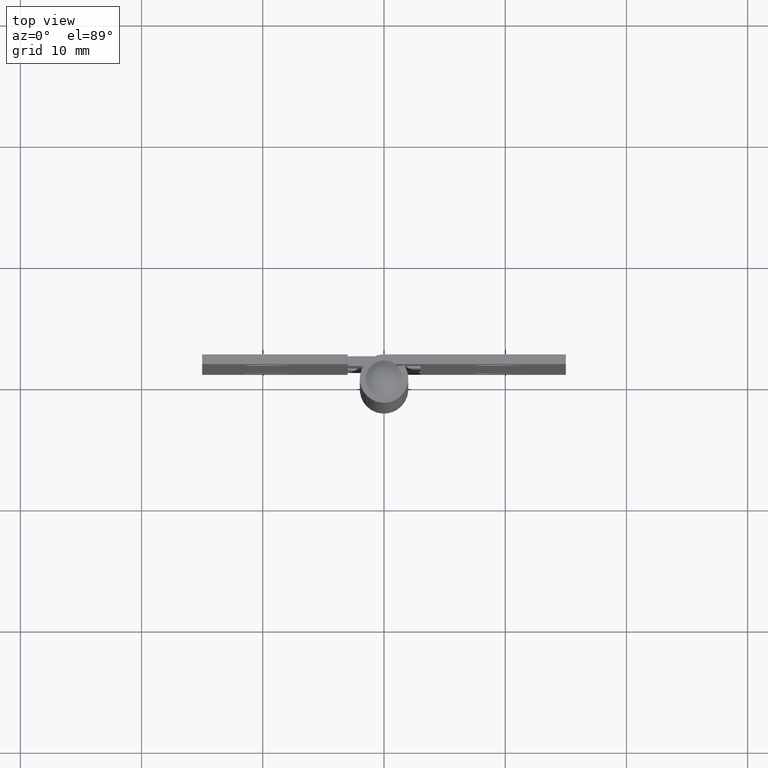
[diagram: clean part render]
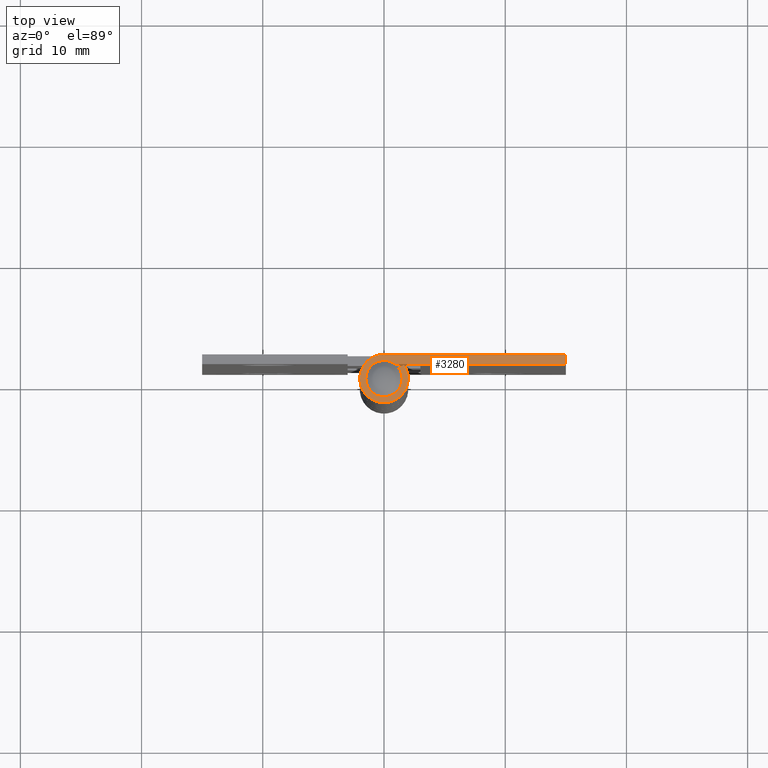
[diagram: same view with one face highlighted and labeled with its STEP entity id]
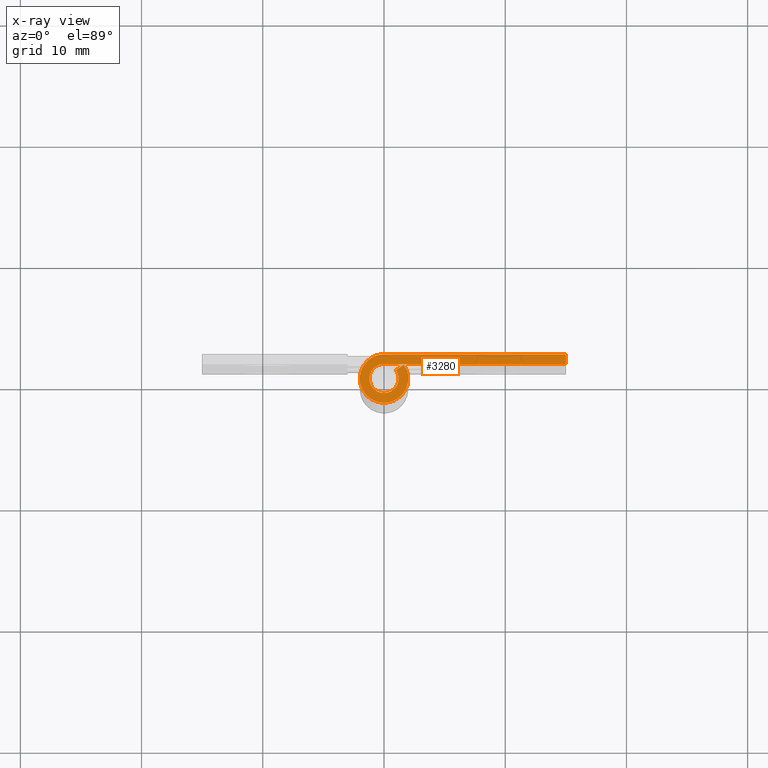
[diagram: x-ray of the same camera — body ghosted, the highlighted face saturated]
A machine part, top view. The second image highlights one B-rep face of the part: STEP entity #3280.
The next image is the same camera in x-ray: the body ghosted, the highlighted face saturated — about 0% of this face is hidden behind the body in this view.
In plain terms, the highlighted face is a freeform B-spline surface patch.
Its self-contained STEP definition (entity closure, byte-faithful):
#2736=CARTESIAN_POINT('',(-1.159961E-011,1.199999999999928,50.999999999990401));
#2737=VERTEX_POINT('',#2736);
#2743=CARTESIAN_POINT('',(0.981784090305645,0.689999999999962,50.999999999990401));
#2744=VERTEX_POINT('',#2743);
#2745=CARTESIAN_POINT('',(0.981784090305645,0.689999999999962,50.999999999990401));
#2746=CARTESIAN_POINT('',(1.034422168552497,0.615136618728460,50.999999999990457));
#2747=CARTESIAN_POINT('',(1.118433757805564,0.460629122118717,50.999999999990457));
#2748=CARTESIAN_POINT('',(1.194695842042873,0.195308820256544,50.999999999990337));
#2749=CARTESIAN_POINT('',(1.207508515350687,-0.055929285750216,50.999999999990351));
#2750=CARTESIAN_POINT('',(1.169625064515376,-0.295081255196389,50.999999999990422));
#2751=CARTESIAN_POINT('',(1.087497267518206,-0.531959143619918,50.999999999990322));
#2752=CARTESIAN_POINT('',(0.930758661684202,-0.780548673716475,50.999999999990813));
#2753=CARTESIAN_POINT('',(0.682221353720254,-1.006458770904169,50.999999999990351));
#2754=CARTESIAN_POINT('',(0.410565230338512,-1.140003948143692,50.999999999990230));
#2755=CARTESIAN_POINT('',(0.092310814160450,-1.210436920603901,50.999999999991481));
#2756=CARTESIAN_POINT('',(-0.219530643832612,-1.197266213063028,50.999999999987651));
#2757=CARTESIAN_POINT('',(-0.512669707693945,-1.095614149447946,50.999999999994330));
#2758=CARTESIAN_POINT('',(-0.747508063418381,-0.951044672626299,50.999999999986727));
#2759=CARTESIAN_POINT('',(-0.922022083830737,-0.781714524783277,50.999999999992653));
#2760=CARTESIAN_POINT('',(-1.061892774815422,-0.573912095880713,50.999999999988169));
#2761=CARTESIAN_POINT('',(-1.150941140263953,-0.366339553121361,50.999999999994223));
#2762=CARTESIAN_POINT('',(-1.211311444640439,-0.080122571982191,50.999999999984873));
#2763=CARTESIAN_POINT('',(-1.196312352235491,0.206267321407822,50.999999999995829));
#2764=CARTESIAN_POINT('',(-1.090992151859584,0.532356748218944,50.999999999987999));
#2765=CARTESIAN_POINT('',(-0.921966489877068,0.794699992299131,50.999999999991019));
#2766=CARTESIAN_POINT('',(-0.647834225608306,1.029009665719060,50.999999999990919));
#2767=CARTESIAN_POINT('',(-0.341123578303551,1.168326421477663,50.999999999988717));
#2768=CARTESIAN_POINT('',(-0.108156656634746,1.200025018644697,50.999999999992433));
#2769=CARTESIAN_POINT('',(-1.159961E-011,1.199999999999928,50.999999999990401));
#2770=B_SPLINE_CURVE_WITH_KNOTS('',3,(#2745,#2746,#2747,#2748,#2749,#2750,#2751,#2752,#2753,#2754,#2755,#2756,#2757,#2758,#2759,#2760,#2761,#2762,#2763,#2764,#2765,#2766,#2767,#2768,#2769),.UNSPECIFIED.,.F.,.U.,(4,1,1,1,1,1,1,1,1,1,1,1,1,1,1,1,1,1,1,1,1,1,4),(0.000000338361620,0.274551083333821,0.524189274890052,0.823726344976118,1.023419157764327,1.248082775582598,1.572585034765350,1.897041255069794,2.246521299865671,2.471176587210036,2.870576869034251,3.170108934391314,3.394719364313422,3.694277031360972,3.893971847444843,4.143593151841404,4.368254736960507,4.767636403142492,4.992245539867030,5.391651450749890,5.691189670639505,6.065631315097255,6.390106934498948),.UNSPECIFIED.);
#2771=EDGE_CURVE('',#2744,#2737,#2770,.T.);
#2834=CARTESIAN_POINT('',(14.999999999988461,1.200000000000000,50.999999999990401));
#2835=VERTEX_POINT('',#2834);
#2841=CARTESIAN_POINT('',(14.999999999988461,1.200000000000000,50.999999999990401));
#2842=CARTESIAN_POINT('',(-1.159961E-011,1.199999999999928,50.999999999990401));
#2843=QUASI_UNIFORM_CURVE('',1,(#2841,#2842),.UNSPECIFIED.,.F.,.U.);
#2844=EDGE_CURVE('',#2835,#2737,#2843,.T.);
#3218=CARTESIAN_POINT('',(-2.849128819948964,-2.199714527089573,50.999999999990401));
#3219=CARTESIAN_POINT('',(15.849149416950601,-2.199714527089573,50.999999999990393));
#3220=CARTESIAN_POINT('',(-2.849128819948964,2.199796033571125,50.999999999990401));
#3221=CARTESIAN_POINT('',(15.849149416950601,2.199796033571125,50.999999999990393));
#3222=B_SPLINE_SURFACE_WITH_KNOTS('',1,1,((#3218,#3220),(#3219,#3221)),.UNSPECIFIED.,.F.,.F.,.U.,(2,2),(2,2),(0.0,18.698278236899569),(0.0,4.399510560660698),.UNSPECIFIED.);
#3223=CARTESIAN_POINT('',(1.636306817183805,1.149999999999934,50.999999999990401));
#3224=VERTEX_POINT('',#3223);
#3225=CARTESIAN_POINT('',(-9.285017E-012,2.0,50.999999999990401));
#3226=VERTEX_POINT('',#3225);
#3227=CARTESIAN_POINT('',(1.636306817183805,1.149999999999934,50.999999999990401));
#3228=CARTESIAN_POINT('',(1.748010032497883,0.991210729876224,50.999999999990472));
#3229=CARTESIAN_POINT('',(1.905615085805951,0.678300748346428,50.999999999990301));
#3230=CARTESIAN_POINT('',(1.997409360511715,0.241178278323016,50.999999999990443));
#3231=CARTESIAN_POINT('',(2.004533219383875,-0.120267966988766,50.999999999990457));
#3232=CARTESIAN_POINT('',(1.959181870691362,-0.451145198879733,50.999999999990273));
#3233=CARTESIAN_POINT('',(1.826277478034444,-0.861970707203152,50.999999999990521));
#3234=CARTESIAN_POINT('',(1.598392999324173,-1.231828170973266,50.999999999990337));
#3235=CARTESIAN_POINT('',(1.304423339109212,-1.528241932624550,50.999999999990422));
#3236=CARTESIAN_POINT('',(1.033282738762850,-1.723202664701065,50.999999999990713));
#3237=CARTESIAN_POINT('',(0.733571512345889,-1.870554470590000,50.999999999988383));
#3238=CARTESIAN_POINT('',(0.400263383482726,-1.970215389691543,50.999999999991942));
#3239=CARTESIAN_POINT('',(0.054305253620408,-2.009728588693303,50.999999999989839));
#3240=CARTESIAN_POINT('',(-0.306776652020507,-1.986906354767424,50.999999999990663));
#3241=CARTESIAN_POINT('',(-0.726207684953225,-1.884395773486955,50.999999999990507));
#3242=CARTESIAN_POINT('',(-1.111717761794513,-1.684131698345622,50.999999999988987));
#3243=CARTESIAN_POINT('',(-1.428815539136312,-1.412619594329857,50.999999999991282));
#3244=CARTESIAN_POINT('',(-1.696722477470399,-1.092434528069901,50.999999999988162));
#3245=CARTESIAN_POINT('',(-1.898865878370514,-0.692115727483615,50.999999999993982));
#3246=CARTESIAN_POINT('',(-2.013499877743178,-0.174811593321344,50.999999999989051));
#3247=CARTESIAN_POINT('',(-1.998486285438136,0.301418842362079,50.999999999989683));
#3248=CARTESIAN_POINT('',(-1.874620760869923,0.730039203966825,50.999999999991687));
#3249=CARTESIAN_POINT('',(-1.711308507709761,1.052865595479286,50.999999999989988));
#3250=CARTESIAN_POINT('',(-1.513263588957094,1.321783681785120,50.999999999990003));
#3251=CARTESIAN_POINT('',(-1.223471732904551,1.602642764935911,50.999999999993612));
#3252=CARTESIAN_POINT('',(-0.853908802519607,1.829867019348032,50.999999999980432));
#3253=CARTESIAN_POINT('',(-0.415992404193584,1.971036494874507,51.000000000007930));
#3254=CARTESIAN_POINT('',(-0.138665136006551,2.000022904387819,50.999999999976630));
#3255=CARTESIAN_POINT('',(-9.285017E-012,2.0,50.999999999990401));
#3256=B_SPLINE_CURVE_WITH_KNOTS('',3,(#3227,#3228,#3229,#3230,#3231,#3232,#3233,#3234,#3235,#3236,#3237,#3238,#3239,#3240,#3241,#3242,#3243,#3244,#3245,#3246,#3247,#3248,#3249,#3250,#3251,#3252,#3253,#3254,#3255),.UNSPECIFIED.,.F.,.U.,(4,1,1,1,1,1,1,1,1,1,1,1,1,1,1,1,1,1,1,1,1,1,1,1,1,1,4),(0.000000201448634,0.582416088557723,1.040048970735807,1.331273667555923,1.664097032039615,2.038531206480716,2.620951745339145,2.953739988961640,3.286565640535372,3.619397250406400,3.952214970618430,4.326645974436089,4.659472596923378,5.033900869695911,5.616279948019676,5.949103628236295,6.281932212099688,6.864376983495931,7.280413625223122,7.862846800459121,8.278824088549754,8.611647768570292,8.944476352515896,9.277303727272377,9.818147122376955,10.234180404999851,10.650178224112510),.UNSPECIFIED.);
#3257=EDGE_CURVE('',#3224,#3226,#3256,.T.);
#3258=ORIENTED_EDGE('',*,*,#3257,.F.);
#3259=CARTESIAN_POINT('',(0.981784090305645,0.689999999999962,50.999999999990401));
#3260=CARTESIAN_POINT('',(1.636306817183805,1.149999999999934,50.999999999990401));
#3261=QUASI_UNIFORM_CURVE('',1,(#3259,#3260),.UNSPECIFIED.,.F.,.U.);
#3262=EDGE_CURVE('',#2744,#3224,#3261,.T.);
#3263=ORIENTED_EDGE('',*,*,#3262,.F.);
#3264=ORIENTED_EDGE('',*,*,#2771,.T.);
#3265=ORIENTED_EDGE('',*,*,#2844,.F.);
#3266=CARTESIAN_POINT('',(14.999999999988461,1.999999999982665,50.999999999990401));
#3267=VERTEX_POINT('',#3266);
#3268=CARTESIAN_POINT('',(14.999999999988461,1.999999999982665,50.999999999990401));
#3269=CARTESIAN_POINT('',(14.999999999988461,1.200000000000000,50.999999999990401));
#3270=QUASI_UNIFORM_CURVE('',1,(#3268,#3269),.UNSPECIFIED.,.F.,.U.);
#3271=EDGE_CURVE('',#3267,#2835,#3270,.T.);
#3272=ORIENTED_EDGE('',*,*,#3271,.F.);
#3273=CARTESIAN_POINT('',(-9.285017E-012,2.0,50.999999999990401));
#3274=CARTESIAN_POINT('',(14.999999999988461,1.999999999982665,50.999999999990401));
#3275=QUASI_UNIFORM_CURVE('',1,(#3273,#3274),.UNSPECIFIED.,.F.,.U.);
#3276=EDGE_CURVE('',#3226,#3267,#3275,.T.);
#3277=ORIENTED_EDGE('',*,*,#3276,.F.);
#3278=EDGE_LOOP('',(#3258,#3263,#3264,#3265,#3272,#3277));
#3279=FACE_OUTER_BOUND('',#3278,.T.);
#3280=ADVANCED_FACE('',(#3279),#3222,.T.);